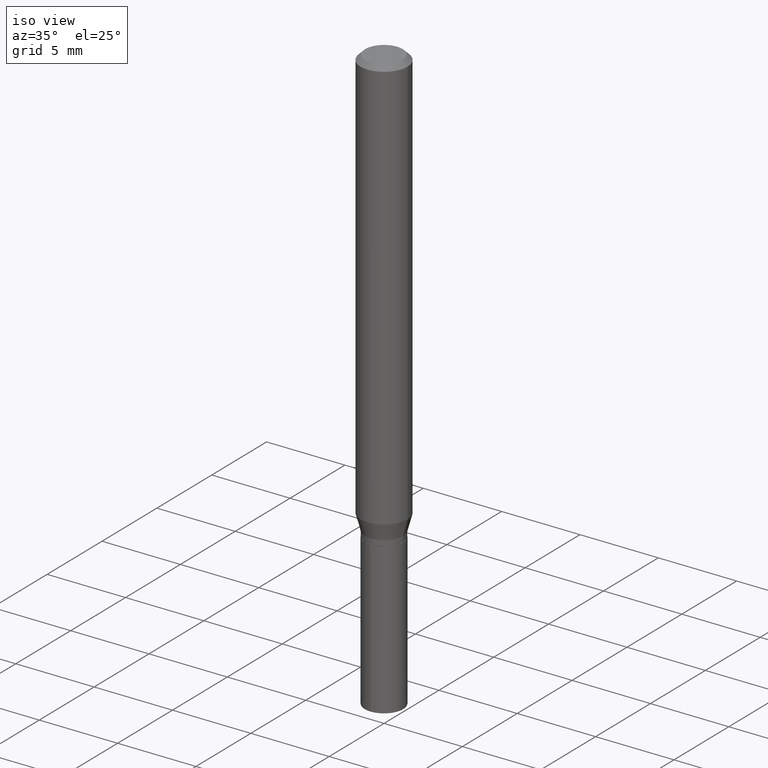
[diagram: clean part render]
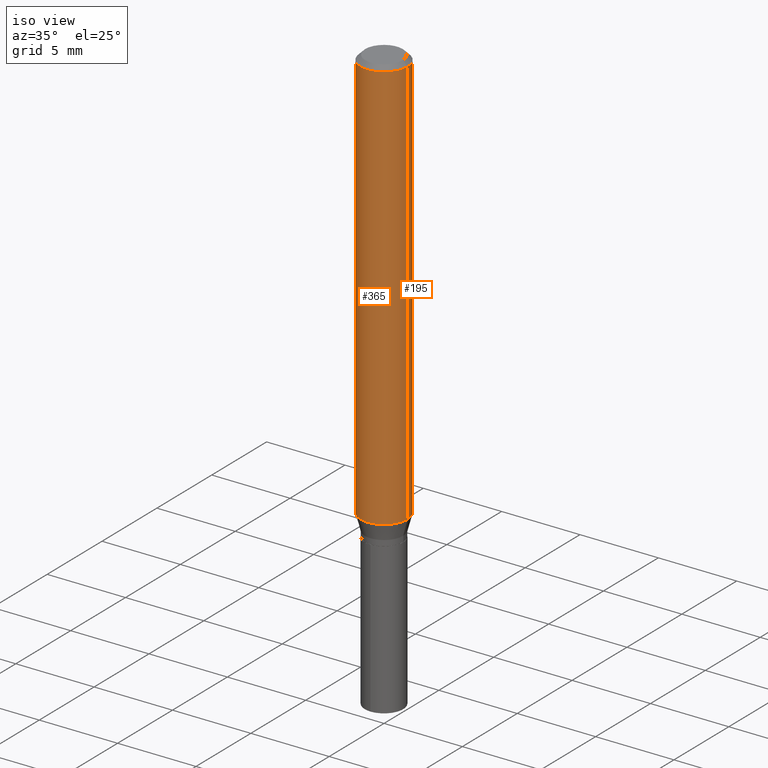
[diagram: same view with one multi-face feature highlighted, each face labeled with its STEP entity id]
A machine part, iso view. The highlighted faces form ONE feature: a constant-radius fillet chain: 2 tangent blend faces with common blend radius 1.4999 mm. The faces share edges in the B-rep.
Their STEP definitions:
[1] entity #365 (Cylinder):
#1 = EDGE_CURVE ( 'NONE', #246, #277, #376, .T. ) ;
#5 = CARTESIAN_POINT ( 'NONE',  ( 0.05905000000000013016, -4.042415625965365299E-15, -1.039693851278255643 ) ) ;
#21 = AXIS2_PLACEMENT_3D ( 'NONE', #70, #409, #284 ) ;
#35 = VERTEX_POINT ( 'NONE', #66 ) ;
#38 = CARTESIAN_POINT ( 'NONE',  ( -0.05905000000000013016, -3.210496194381650492E-15, -1.039693851278255643 ) ) ;
#41 = CARTESIAN_POINT ( 'NONE',  ( 0.05905000000000006771, -4.123439461173745257E-16, 2.879382386107503723E-30 ) ) ;
#44 = LINE ( 'NONE', #457, #415 ) ;
#53 = CARTESIAN_POINT ( 'NONE',  ( 2.888098660104664642E-31, -4.123439461173780879E-17, -0.01181000000000007565 ) ) ;
#66 = CARTESIAN_POINT ( 'NONE',  ( 0.05904999999999999832, -4.535783407291118600E-16, -0.01181000000000007565 ) ) ;
#70 = CARTESIAN_POINT ( 'NONE',  ( 0.000000000000000000, 0.000000000000000000, 0.000000000000000000 ) ) ;
#72 = CIRCLE ( 'NONE', #336, 0.05904999999999999832 ) ;
#96 = EDGE_CURVE ( 'NONE', #246, #323, #44, .T. ) ;
#107 = ORIENTED_EDGE ( 'NONE', *, *, #1, .T. ) ;
#126 = AXIS2_PLACEMENT_3D ( 'NONE', #294, #168, #315 ) ;
#157 = DIRECTION ( 'NONE',  ( -2.445468806185136877E-29, 3.491481338843145188E-15, 1.000000000000000000 ) ) ;
#168 = DIRECTION ( 'NONE',  ( -2.445468806185136597E-29, 3.491481338843145583E-15, 1.000000000000000000 ) ) ;
#171 = CARTESIAN_POINT ( 'NONE',  ( -0.05904999999999999832, -1.416077551763523575E-15, -0.01181000000000007565 ) ) ;
#186 = DIRECTION ( 'NONE',  ( -2.445468806185136877E-29, 3.491481338843145188E-15, 1.000000000000000000 ) ) ;
#233 = EDGE_LOOP ( 'NONE', ( #290, #107, #243, #238 ) ) ;
#238 = ORIENTED_EDGE ( 'NONE', *, *, #453, .F. ) ;
#243 = ORIENTED_EDGE ( 'NONE', *, *, #466, .T. ) ;
#246 = VERTEX_POINT ( 'NONE', #38 ) ;
#273 = DIRECTION ( 'NONE',  ( -2.445468806185136597E-29, 3.491481338843145583E-15, 1.000000000000000000 ) ) ;
#277 = VERTEX_POINT ( 'NONE', #5 ) ;
#284 = DIRECTION ( 'NONE',  ( 1.000000000000000000, -6.982962677686266711E-15, 4.876176775795936353E-29 ) ) ;
#290 = ORIENTED_EDGE ( 'NONE', *, *, #96, .F. ) ;
#294 = CARTESIAN_POINT ( 'NONE',  ( 2.542538881283463133E-29, -3.630071679847990379E-15, -1.039693851278255643 ) ) ;
#297 = LINE ( 'NONE', #41, #408 ) ;
#315 = DIRECTION ( 'NONE',  ( 1.000000000000000000, -6.982962677686265133E-15, 0.000000000000000000 ) ) ;
#323 = VERTEX_POINT ( 'NONE', #171 ) ;
#336 = AXIS2_PLACEMENT_3D ( 'NONE', #53, #273, #422 ) ;
#365 = ADVANCED_FACE ( 'NONE', ( #450 ), #403, .T. ) ;
#376 = CIRCLE ( 'NONE', #126, 0.05905000000000013016 ) ;
#403 = CYLINDRICAL_SURFACE ( 'NONE', #21, 0.05905000000000006771 ) ;
#408 = VECTOR ( 'NONE', #186, 39.37007874015748143 ) ;
#409 = DIRECTION ( 'NONE',  ( -2.445468806185136597E-29, 3.491481338843145583E-15, 1.000000000000000000 ) ) ;
#415 = VECTOR ( 'NONE', #157, 39.37007874015748143 ) ;
#422 = DIRECTION ( 'NONE',  ( 1.000000000000000000, -6.982962677686266711E-15, 0.000000000000000000 ) ) ;
#450 = FACE_OUTER_BOUND ( 'NONE', #233, .T. ) ;
#453 = EDGE_CURVE ( 'NONE', #323, #35, #72, .T. ) ;
#457 = CARTESIAN_POINT ( 'NONE',  ( -0.05905000000000006771, 4.195754854663396409E-16, -2.904631170795525045E-30 ) ) ;
#466 = EDGE_CURVE ( 'NONE', #277, #35, #297, .T. ) ;
[2] entity #195 (Cylinder):
#5 = CARTESIAN_POINT ( 'NONE',  ( 0.05905000000000013016, -4.042415625965365299E-15, -1.039693851278255643 ) ) ;
#18 = CIRCLE ( 'NONE', #366, 0.05904999999999999832 ) ;
#34 = EDGE_CURVE ( 'NONE', #35, #323, #18, .T. ) ;
#35 = VERTEX_POINT ( 'NONE', #66 ) ;
#38 = CARTESIAN_POINT ( 'NONE',  ( -0.05905000000000013016, -3.210496194381650492E-15, -1.039693851278255643 ) ) ;
#41 = CARTESIAN_POINT ( 'NONE',  ( 0.05905000000000006771, -4.123439461173745257E-16, 2.879382386107503723E-30 ) ) ;
#44 = LINE ( 'NONE', #457, #415 ) ;
#45 = CARTESIAN_POINT ( 'NONE',  ( 2.542538881283463133E-29, -3.630071679847990379E-15, -1.039693851278255643 ) ) ;
#66 = CARTESIAN_POINT ( 'NONE',  ( 0.05904999999999999832, -4.535783407291118600E-16, -0.01181000000000007565 ) ) ;
#94 = AXIS2_PLACEMENT_3D ( 'NONE', #477, #326, #106 ) ;
#95 = EDGE_LOOP ( 'NONE', ( #465, #102, #362, #103 ) ) ;
#96 = EDGE_CURVE ( 'NONE', #246, #323, #44, .T. ) ;
#102 = ORIENTED_EDGE ( 'NONE', *, *, #96, .T. ) ;
#103 = ORIENTED_EDGE ( 'NONE', *, *, #466, .F. ) ;
#106 = DIRECTION ( 'NONE',  ( 1.000000000000000000, -6.982962677686266711E-15, 4.876176775795936353E-29 ) ) ;
#142 = FACE_OUTER_BOUND ( 'NONE', #95, .T. ) ;
#152 = DIRECTION ( 'NONE',  ( 1.000000000000000000, -6.982962677686265133E-15, 0.000000000000000000 ) ) ;
#157 = DIRECTION ( 'NONE',  ( -2.445468806185136877E-29, 3.491481338843145188E-15, 1.000000000000000000 ) ) ;
#167 = DIRECTION ( 'NONE',  ( 1.000000000000000000, -6.982962677686266711E-15, 0.000000000000000000 ) ) ;
#171 = CARTESIAN_POINT ( 'NONE',  ( -0.05904999999999999832, -1.416077551763523575E-15, -0.01181000000000007565 ) ) ;
#186 = DIRECTION ( 'NONE',  ( -2.445468806185136877E-29, 3.491481338843145188E-15, 1.000000000000000000 ) ) ;
#195 = ADVANCED_FACE ( 'NONE', ( #142 ), #293, .T. ) ;
#211 = CARTESIAN_POINT ( 'NONE',  ( 2.888098660104664642E-31, -4.123439461173780879E-17, -0.01181000000000007565 ) ) ;
#214 = DIRECTION ( 'NONE',  ( -2.445468806185136597E-29, 3.491481338843145583E-15, 1.000000000000000000 ) ) ;
#246 = VERTEX_POINT ( 'NONE', #38 ) ;
#250 = AXIS2_PLACEMENT_3D ( 'NONE', #45, #268, #152 ) ;
#268 = DIRECTION ( 'NONE',  ( -2.445468806185136597E-29, 3.491481338843145583E-15, 1.000000000000000000 ) ) ;
#277 = VERTEX_POINT ( 'NONE', #5 ) ;
#293 = CYLINDRICAL_SURFACE ( 'NONE', #94, 0.05905000000000006771 ) ;
#297 = LINE ( 'NONE', #41, #408 ) ;
#323 = VERTEX_POINT ( 'NONE', #171 ) ;
#326 = DIRECTION ( 'NONE',  ( -2.445468806185136597E-29, 3.491481338843145583E-15, 1.000000000000000000 ) ) ;
#362 = ORIENTED_EDGE ( 'NONE', *, *, #34, .F. ) ;
#366 = AXIS2_PLACEMENT_3D ( 'NONE', #211, #214, #167 ) ;
#379 = CIRCLE ( 'NONE', #250, 0.05905000000000013016 ) ;
#408 = VECTOR ( 'NONE', #186, 39.37007874015748143 ) ;
#415 = VECTOR ( 'NONE', #157, 39.37007874015748143 ) ;
#448 = EDGE_CURVE ( 'NONE', #277, #246, #379, .T. ) ;
#457 = CARTESIAN_POINT ( 'NONE',  ( -0.05905000000000006771, 4.195754854663396409E-16, -2.904631170795525045E-30 ) ) ;
#465 = ORIENTED_EDGE ( 'NONE', *, *, #448, .T. ) ;
#466 = EDGE_CURVE ( 'NONE', #277, #35, #297, .T. ) ;
#477 = CARTESIAN_POINT ( 'NONE',  ( 0.000000000000000000, 0.000000000000000000, 0.000000000000000000 ) ) ;